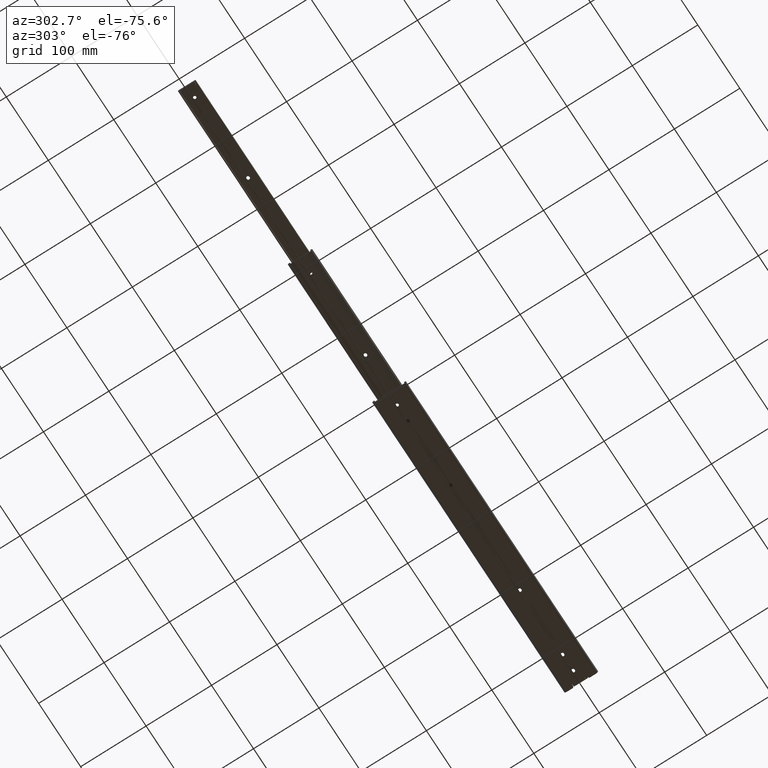
[diagram: clean part render]
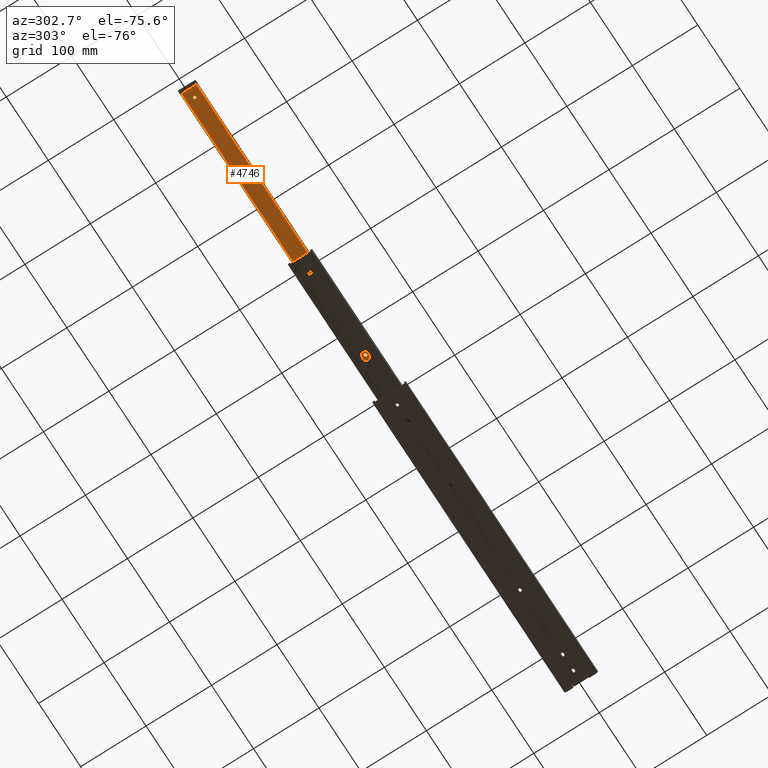
[diagram: same view with one face highlighted and labeled with its STEP entity id]
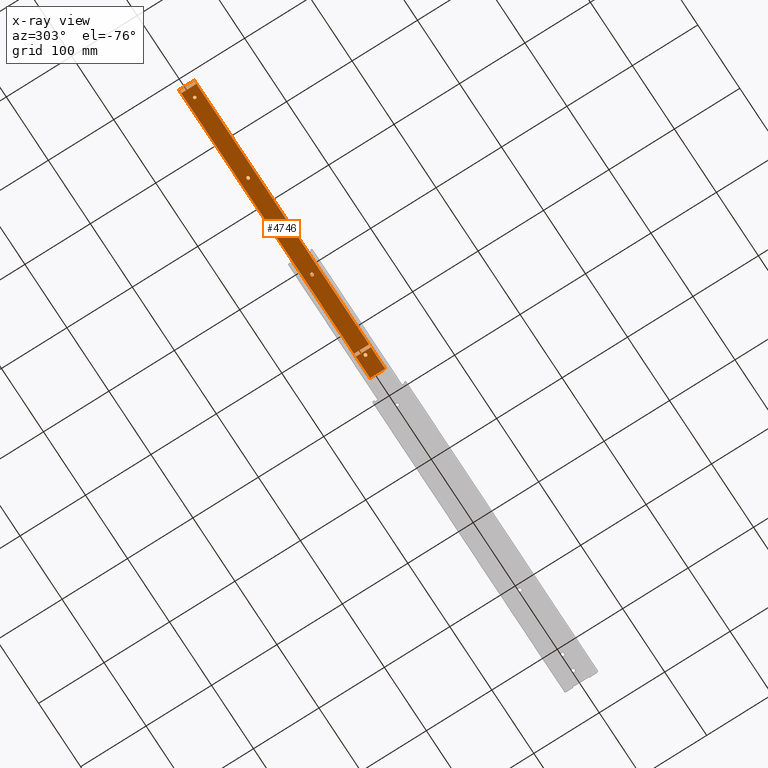
[diagram: x-ray of the same camera — body ghosted, the highlighted face saturated]
A machine part, auxiliary view. The second image highlights one B-rep face of the part: STEP entity #4746.
The next image is the same camera in x-ray: the body ghosted, the highlighted face saturated — about 0% of this face is hidden behind the body in this view.
In plain terms, the highlighted planar face has unit normal (0, -0, -1).
Its self-contained STEP definition (entity closure, byte-faithful):
#8 = ORIENTED_EDGE ( 'NONE', *, *, #2989, .F. ) ;
#15 = ORIENTED_EDGE ( 'NONE', *, *, #741, .F. ) ;
#29 = CIRCLE ( 'NONE', #2054, 2.250000000000000000 ) ;
#32 = ORIENTED_EDGE ( 'NONE', *, *, #6806, .F. ) ;
#67 = VECTOR ( 'NONE', #7058, 1000.000000000000000 ) ;
#123 = VERTEX_POINT ( 'NONE', #183 ) ;
#146 = DIRECTION ( 'NONE',  ( 0.0000000000000000000, -1.313188302234630400E-016, -1.000000000000000000 ) ) ;
#169 = VECTOR ( 'NONE', #6057, 1000.000000000000000 ) ;
#183 = CARTESIAN_POINT ( 'NONE',  ( 454.3999999999999800, 11.55876151879170900, -1.599999999999960800 ) ) ;
#187 = ORIENTED_EDGE ( 'NONE', *, *, #7495, .F. ) ;
#191 = CIRCLE ( 'NONE', #2157, 2.250000000000000000 ) ;
#222 = DIRECTION ( 'NONE',  ( 0.0000000000000000000, -1.313188302234630400E-016, -1.000000000000000000 ) ) ;
#243 = CARTESIAN_POINT ( 'NONE',  ( 454.3999999999999800, 11.55876151879170900, -1.599999999999960800 ) ) ;
#288 = EDGE_LOOP ( 'NONE', ( #5741, #187 ) ) ;
#298 = DIRECTION ( 'NONE',  ( 0.0000000000000000000, 1.000000000000000000, -9.637352644315585400E-017 ) ) ;
#354 = CARTESIAN_POINT ( 'NONE',  ( 301.1499999999999800, 7.038289768340773800E-013, -1.599999999999959500 ) ) ;
#419 = ORIENTED_EDGE ( 'NONE', *, *, #4133, .F. ) ;
#467 = CIRCLE ( 'NONE', #6349, 2.250000000000000000 ) ;
#484 = CARTESIAN_POINT ( 'NONE',  ( 454.3999999999999800, -11.55876151879170900, -1.599999999999957900 ) ) ;
#495 = ORIENTED_EDGE ( 'NONE', *, *, #4872, .F. ) ;
#527 = CARTESIAN_POINT ( 'NONE',  ( 420.5000000000000000, -11.00000000000000200, -1.599999999999957900 ) ) ;
#550 = CARTESIAN_POINT ( 'NONE',  ( 4.999999999999999100, -11.00000000000000000, -1.599999999999957900 ) ) ;
#615 = ORIENTED_EDGE ( 'NONE', *, *, #1456, .F. ) ;
#619 = ORIENTED_EDGE ( 'NONE', *, *, #850, .F. ) ;
#652 = PLANE ( 'NONE',  #6594 ) ;
#671 = VERTEX_POINT ( 'NONE', #5602 ) ;
#705 = CARTESIAN_POINT ( 'NONE',  ( 420.5000000000000000, -11.00000000000000200, -1.599999999999957900 ) ) ;
#707 = AXIS2_PLACEMENT_3D ( 'NONE', #3799, #222, #4412 ) ;
#722 = CARTESIAN_POINT ( 'NONE',  ( 146.5000000000000900, -2.250000000000000400, -1.599999999999959000 ) ) ;
#733 = VECTOR ( 'NONE', #6922, 1000.000000000000000 ) ;
#735 = LINE ( 'NONE', #5426, #917 ) ;
#741 = EDGE_CURVE ( 'NONE', #5172, #1689, #2326, .T. ) ;
#780 = VERTEX_POINT ( 'NONE', #6171 ) ;
#805 = FACE_BOUND ( 'NONE', #288, .T. ) ;
#850 = EDGE_CURVE ( 'NONE', #6939, #7079, #3334, .T. ) ;
#869 = ORIENTED_EDGE ( 'NONE', *, *, #2243, .F. ) ;
#879 = CARTESIAN_POINT ( 'NONE',  ( 425.9000000000003800, -2.249999999999296100, -1.599999999999959000 ) ) ;
#917 = VECTOR ( 'NONE', #7117, 1000.000000000000000 ) ;
#973 = LINE ( 'NONE', #527, #7210 ) ;
#987 = FACE_BOUND ( 'NONE', #4592, .T. ) ;
#1029 = AXIS2_PLACEMENT_3D ( 'NONE', #6689, #3038, #7298 ) ;
#1091 = DIRECTION ( 'NONE',  ( -1.000000000000000000, -0.0000000000000000000, -0.0000000000000000000 ) ) ;
#1138 = CARTESIAN_POINT ( 'NONE',  ( 298.1000000000000200, 2.250000000000703900, -1.599999999999959500 ) ) ;
#1164 = ORIENTED_EDGE ( 'NONE', *, *, #6151, .F. ) ;
#1198 = CARTESIAN_POINT ( 'NONE',  ( 298.8999999999999800, 7.038289768340773800E-013, -1.599999999999959500 ) ) ;
#1233 = VERTEX_POINT ( 'NONE', #879 ) ;
#1246 = EDGE_LOOP ( 'NONE', ( #4728, #7296, #1740, #4614 ) ) ;
#1259 = DIRECTION ( 'NONE',  ( 0.0000000000000000000, -1.313188302234630400E-016, -1.000000000000000000 ) ) ;
#1310 = EDGE_CURVE ( 'NONE', #6360, #4884, #6476, .T. ) ;
#1383 = DIRECTION ( 'NONE',  ( 0.0000000000000000000, 1.000000000000000000, -9.637352644315595200E-017 ) ) ;
#1430 = DIRECTION ( 'NONE',  ( 0.0000000000000000000, -1.000000000000000000, 1.313188302234630400E-016 ) ) ;
#1456 = EDGE_CURVE ( 'NONE', #7309, #2100, #735, .T. ) ;
#1467 = CARTESIAN_POINT ( 'NONE',  ( 454.3999999999999800, -2.250000000000000400, -1.599999999999959000 ) ) ;
#1469 = CARTESIAN_POINT ( 'NONE',  ( 425.8999999999999800, 2.250000000000703900, -1.599999999999959900 ) ) ;
#1491 = VECTOR ( 'NONE', #4894, 1000.000000000000000 ) ;
#1506 = EDGE_CURVE ( 'NONE', #2269, #1549, #3719, .T. ) ;
#1513 = VERTEX_POINT ( 'NONE', #4534 ) ;
#1518 = CARTESIAN_POINT ( 'NONE',  ( 428.1499999999999800, 7.038779627060433600E-013, -1.599999999999959500 ) ) ;
#1535 = VERTEX_POINT ( 'NONE', #5768 ) ;
#1549 = VERTEX_POINT ( 'NONE', #6287 ) ;
#1568 = DIRECTION ( 'NONE',  ( -1.000000000000000000, -0.0000000000000000000, -0.0000000000000000000 ) ) ;
#1684 = EDGE_CURVE ( 'NONE', #123, #6838, #2414, .T. ) ;
#1689 = VERTEX_POINT ( 'NONE', #2221 ) ;
#1740 = ORIENTED_EDGE ( 'NONE', *, *, #1310, .F. ) ;
#1757 = CARTESIAN_POINT ( 'NONE',  ( 454.3999999999999800, 11.55876151879170900, -1.599999999999960800 ) ) ;
#1796 = DIRECTION ( 'NONE',  ( 0.0000000000000000000, -1.313188302234630400E-016, -1.000000000000000000 ) ) ;
#1806 = EDGE_LOOP ( 'NONE', ( #7205, #5579, #7470, #5349 ) ) ;
#1907 = EDGE_LOOP ( 'NONE', ( #4996, #2178, #1926, #6049, #2461 ) ) ;
#1912 = CARTESIAN_POINT ( 'NONE',  ( 0.5000000000000022200, 11.00000000000000000, -1.599999999999960800 ) ) ;
#1915 = CIRCLE ( 'NONE', #707, 2.250000000000000000 ) ;
#1926 = ORIENTED_EDGE ( 'NONE', *, *, #4271, .F. ) ;
#1941 = AXIS2_PLACEMENT_3D ( 'NONE', #3816, #146, #6469 ) ;
#1965 = DIRECTION ( 'NONE',  ( 0.0000000000000000000, -1.000000000000000000, 1.313188302234630400E-016 ) ) ;
#1970 = CARTESIAN_POINT ( 'NONE',  ( 454.3999999999999800, -2.249999999999296100, -1.599999999999959000 ) ) ;
#1976 = EDGE_CURVE ( 'NONE', #1549, #1535, #3329, .T. ) ;
#2054 = AXIS2_PLACEMENT_3D ( 'NONE', #5982, #2378, #6597 ) ;
#2072 = VERTEX_POINT ( 'NONE', #6414 ) ;
#2100 = VERTEX_POINT ( 'NONE', #1469 ) ;
#2134 = VECTOR ( 'NONE', #5345, 1000.000000000000000 ) ;
#2157 = AXIS2_PLACEMENT_3D ( 'NONE', #5385, #1796, #5999 ) ;
#2178 = ORIENTED_EDGE ( 'NONE', *, *, #7023, .F. ) ;
#2179 = VERTEX_POINT ( 'NONE', #3172 ) ;
#2185 = LINE ( 'NONE', #484, #5191 ) ;
#2221 = CARTESIAN_POINT ( 'NONE',  ( 5.000000000000001800, 11.00000000000000000, -1.599999999999960800 ) ) ;
#2243 = EDGE_CURVE ( 'NONE', #1689, #5370, #6273, .T. ) ;
#2269 = VERTEX_POINT ( 'NONE', #3435 ) ;
#2272 = DIRECTION ( 'NONE',  ( 0.0000000000000000000, -1.313188302234630400E-016, -1.000000000000000000 ) ) ;
#2326 = LINE ( 'NONE', #5419, #733 ) ;
#2378 = DIRECTION ( 'NONE',  ( 0.0000000000000000000, -1.313188302234630400E-016, -1.000000000000000000 ) ) ;
#2399 = FACE_BOUND ( 'NONE', #1907, .T. ) ;
#2414 = LINE ( 'NONE', #1757, #5611 ) ;
#2429 = CARTESIAN_POINT ( 'NONE',  ( 454.3999999999999800, 11.55876151879170900, -1.599999999999960800 ) ) ;
#2461 = ORIENTED_EDGE ( 'NONE', *, *, #1976, .F. ) ;
#2496 = LINE ( 'NONE', #550, #2134 ) ;
#2547 = DIRECTION ( 'NONE',  ( 0.0000000000000000000, -1.313188302234630400E-016, -1.000000000000000000 ) ) ;
#2561 = CARTESIAN_POINT ( 'NONE',  ( 146.5000000000000300, 8.757870196559371000E-015, -1.599999999999959500 ) ) ;
#2572 = CARTESIAN_POINT ( 'NONE',  ( 298.8999999999999200, -2.249999999999296100, -1.599999999999959000 ) ) ;
#2633 = ORIENTED_EDGE ( 'NONE', *, *, #3800, .F. ) ;
#2731 = VERTEX_POINT ( 'NONE', #7555 ) ;
#2764 = VECTOR ( 'NONE', #3814, 1000.000000000000000 ) ;
#2765 = CARTESIAN_POINT ( 'NONE',  ( 416.0000000000000000, -11.00000000000000000, -1.599999999999957900 ) ) ;
#2803 = CARTESIAN_POINT ( 'NONE',  ( 5.000000000000001800, 11.00000000000000000, -1.599999999999960800 ) ) ;
#2819 = VERTEX_POINT ( 'NONE', #1518 ) ;
#2940 = EDGE_CURVE ( 'NONE', #2819, #1233, #3788, .T. ) ;
#2965 = DIRECTION ( 'NONE',  ( -0.0000000000000000000, 1.000000000000000000, -1.379893674072460500E-016 ) ) ;
#2971 = VERTEX_POINT ( 'NONE', #5262 ) ;
#2989 = EDGE_CURVE ( 'NONE', #7551, #2971, #6646, .T. ) ;
#3038 = DIRECTION ( 'NONE',  ( 0.0000000000000000000, -1.313188302234630400E-016, -1.000000000000000000 ) ) ;
#3056 = VECTOR ( 'NONE', #3359, 1000.000000000000000 ) ;
#3112 = DIRECTION ( 'NONE',  ( 0.0000000000000000000, -1.313188302234630400E-016, -1.000000000000000000 ) ) ;
#3141 = EDGE_CURVE ( 'NONE', #2100, #2819, #7122, .T. ) ;
#3150 = DIRECTION ( 'NONE',  ( 0.0000000000000000000, 1.000000000000000000, -9.637352644315595200E-017 ) ) ;
#3172 = CARTESIAN_POINT ( 'NONE',  ( 0.4999999999999997800, -11.00000000000000000, -1.599999999999957900 ) ) ;
#3214 = VECTOR ( 'NONE', #7781, 1000.000000000000000 ) ;
#3217 = VERTEX_POINT ( 'NONE', #705 ) ;
#3226 = VECTOR ( 'NONE', #6310, 1000.000000000000000 ) ;
#3255 = VECTOR ( 'NONE', #6897, 1000.000000000000000 ) ;
#3329 = LINE ( 'NONE', #5545, #169 ) ;
#3334 = CIRCLE ( 'NONE', #5597, 2.250000000000000000 ) ;
#3339 = CARTESIAN_POINT ( 'NONE',  ( 298.8999999999999800, 7.038289768340773800E-013, -1.599999999999959500 ) ) ;
#3359 = DIRECTION ( 'NONE',  ( 1.000000000000000000, -0.0000000000000000000, -0.0000000000000000000 ) ) ;
#3435 = CARTESIAN_POINT ( 'NONE',  ( 145.6999999999999900, -2.250000000000000000, -1.599999999999959000 ) ) ;
#3514 = CARTESIAN_POINT ( 'NONE',  ( 454.3999999999999800, -2.249999999999296100, -1.599999999999959000 ) ) ;
#3574 = CARTESIAN_POINT ( 'NONE',  ( 416.0000000000000000, 11.00000000000000000, -1.599999999999960800 ) ) ;
#3634 = AXIS2_PLACEMENT_3D ( 'NONE', #2561, #6801, #3150 ) ;
#3719 = CIRCLE ( 'NONE', #1941, 2.250000000000000000 ) ;
#3720 = CARTESIAN_POINT ( 'NONE',  ( 16.85000000000000100, 2.755455298081548200E-016, -1.599999999999959000 ) ) ;
#3721 = CARTESIAN_POINT ( 'NONE',  ( 0.0000000000000000000, 11.55876151879170900, -1.599999999999960800 ) ) ;
#3788 = CIRCLE ( 'NONE', #3974, 2.250000000000000000 ) ;
#3792 = FACE_BOUND ( 'NONE', #1246, .T. ) ;
#3799 = CARTESIAN_POINT ( 'NONE',  ( 146.5000000000000300, 8.757870196559371000E-015, -1.599999999999959500 ) ) ;
#3800 = EDGE_CURVE ( 'NONE', #5268, #6939, #4383, .T. ) ;
#3814 = DIRECTION ( 'NONE',  ( 1.000000000000000000, 0.0000000000000000000, 0.0000000000000000000 ) ) ;
#3816 = CARTESIAN_POINT ( 'NONE',  ( 145.6999999999999900, -1.128087758495556000E-014, -1.599999999999959000 ) ) ;
#3874 = DIRECTION ( 'NONE',  ( 0.0000000000000000000, -1.313188302234630400E-016, -1.000000000000000000 ) ) ;
#3947 = DIRECTION ( 'NONE',  ( 0.0000000000000000000, 1.000000000000000000, -9.637352644315595200E-017 ) ) ;
#3974 = AXIS2_PLACEMENT_3D ( 'NONE', #5876, #2272, #6489 ) ;
#4095 = VECTOR ( 'NONE', #1430, 1000.000000000000000 ) ;
#4133 = EDGE_CURVE ( 'NONE', #5370, #2179, #2496, .T. ) ;
#4271 = EDGE_CURVE ( 'NONE', #671, #6323, #5987, .T. ) ;
#4281 = ORIENTED_EDGE ( 'NONE', *, *, #7472, .F. ) ;
#4383 = LINE ( 'NONE', #6229, #2764 ) ;
#4405 = AXIS2_PLACEMENT_3D ( 'NONE', #7532, #3874, #298 ) ;
#4410 = EDGE_CURVE ( 'NONE', #4884, #3217, #4849, .T. ) ;
#4412 = DIRECTION ( 'NONE',  ( 0.0000000000000000000, 1.000000000000000000, -9.637352644315595200E-017 ) ) ;
#4478 = CARTESIAN_POINT ( 'NONE',  ( 420.5000000000000000, 11.00000000000000000, -1.599999999999960800 ) ) ;
#4482 = CIRCLE ( 'NONE', #5080, 2.250000000000002200 ) ;
#4534 = CARTESIAN_POINT ( 'NONE',  ( 21.35000000000000500, 0.0000000000000000000, -1.599999999999959000 ) ) ;
#4592 = EDGE_LOOP ( 'NONE', ( #32, #495, #7765, #6789, #615 ) ) ;
#4614 = ORIENTED_EDGE ( 'NONE', *, *, #5584, .F. ) ;
#4728 = ORIENTED_EDGE ( 'NONE', *, *, #5521, .F. ) ;
#4746 = ADVANCED_FACE ( 'NONE', ( #987, #5595, #2399, #805, #7033, #5404, #3792 ), #652, .T. ) ;
#4849 = LINE ( 'NONE', #4478, #3226 ) ;
#4872 = EDGE_CURVE ( 'NONE', #1233, #2731, #7512, .T. ) ;
#4882 = LINE ( 'NONE', #1467, #3255 ) ;
#4884 = VERTEX_POINT ( 'NONE', #6794 ) ;
#4894 = DIRECTION ( 'NONE',  ( 1.084202172485504600E-016, 1.000000000000000000, -1.379893674072460500E-016 ) ) ;
#4912 = VECTOR ( 'NONE', #1965, 1000.000000000000000 ) ;
#4996 = ORIENTED_EDGE ( 'NONE', *, *, #1506, .F. ) ;
#5008 = EDGE_CURVE ( 'NONE', #1513, #7521, #5117, .T. ) ;
#5080 = AXIS2_PLACEMENT_3D ( 'NONE', #6766, #3112, #7367 ) ;
#5089 = CARTESIAN_POINT ( 'NONE',  ( 420.5000000000000000, 11.00000000000000000, -1.599999999999960800 ) ) ;
#5117 = CIRCLE ( 'NONE', #4405, 2.250000000000002200 ) ;
#5172 = VERTEX_POINT ( 'NONE', #6456 ) ;
#5191 = VECTOR ( 'NONE', #1091, 1000.000000000000000 ) ;
#5200 = LINE ( 'NONE', #3574, #6833 ) ;
#5262 = CARTESIAN_POINT ( 'NONE',  ( 298.1000000000000200, -2.249999999999296100, -1.599999999999959000 ) ) ;
#5268 = VERTEX_POINT ( 'NONE', #1138 ) ;
#5280 = EDGE_LOOP ( 'NONE', ( #1164, #8, #5719, #619, #2633 ) ) ;
#5323 = DIRECTION ( 'NONE',  ( -1.000000000000000000, 3.854941057726234200E-016, 0.0000000000000000000 ) ) ;
#5345 = DIRECTION ( 'NONE',  ( -1.000000000000000000, 0.0000000000000000000, 0.0000000000000000000 ) ) ;
#5349 = ORIENTED_EDGE ( 'NONE', *, *, #6079, .T. ) ;
#5370 = VERTEX_POINT ( 'NONE', #6054 ) ;
#5385 = CARTESIAN_POINT ( 'NONE',  ( 425.0999999999999700, 7.037310050901456100E-013, -1.599999999999959500 ) ) ;
#5404 = FACE_BOUND ( 'NONE', #5638, .T. ) ;
#5419 = CARTESIAN_POINT ( 'NONE',  ( 5.000000000000001800, 11.00000000000000000, -1.599999999999960800 ) ) ;
#5426 = CARTESIAN_POINT ( 'NONE',  ( 454.3999999999999800, 2.250000000000703000, -1.599999999999959500 ) ) ;
#5451 = DIRECTION ( 'NONE',  ( 0.0000000000000000000, 1.000000000000000000, -1.313188302234630400E-016 ) ) ;
#5521 = EDGE_CURVE ( 'NONE', #3217, #6593, #973, .T. ) ;
#5524 = LINE ( 'NONE', #243, #4095 ) ;
#5545 = CARTESIAN_POINT ( 'NONE',  ( 454.3999999999999800, 2.250000000000000400, -1.599999999999959500 ) ) ;
#5548 = CARTESIAN_POINT ( 'NONE',  ( 416.0000000000000600, 11.00000000000000000, -1.599999999999960800 ) ) ;
#5579 = ORIENTED_EDGE ( 'NONE', *, *, #1684, .F. ) ;
#5584 = EDGE_CURVE ( 'NONE', #6593, #6360, #5200, .T. ) ;
#5595 = FACE_BOUND ( 'NONE', #5280, .T. ) ;
#5597 = AXIS2_PLACEMENT_3D ( 'NONE', #1198, #2547, #1383 ) ;
#5602 = CARTESIAN_POINT ( 'NONE',  ( 148.7500000000000300, 8.757870196559371000E-015, -1.599999999999959500 ) ) ;
#5611 = VECTOR ( 'NONE', #1568, 1000.000000000000000 ) ;
#5638 = EDGE_LOOP ( 'NONE', ( #419, #869, #15, #4281 ) ) ;
#5719 = ORIENTED_EDGE ( 'NONE', *, *, #6555, .F. ) ;
#5741 = ORIENTED_EDGE ( 'NONE', *, *, #5008, .F. ) ;
#5768 = CARTESIAN_POINT ( 'NONE',  ( 146.5000000000000300, 2.250000000000000000, -1.599999999999959900 ) ) ;
#5876 = CARTESIAN_POINT ( 'NONE',  ( 425.8999999999999800, 7.038779627060433600E-013, -1.599999999999959500 ) ) ;
#5982 = CARTESIAN_POINT ( 'NONE',  ( 298.1000000000000200, 7.036820192181797200E-013, -1.599999999999959500 ) ) ;
#5987 = CIRCLE ( 'NONE', #3634, 2.250000000000000000 ) ;
#5999 = DIRECTION ( 'NONE',  ( 0.0000000000000000000, 1.000000000000000000, -9.637352644315595200E-017 ) ) ;
#6049 = ORIENTED_EDGE ( 'NONE', *, *, #6404, .F. ) ;
#6054 = CARTESIAN_POINT ( 'NONE',  ( 4.999999999999999100, -11.00000000000000000, -1.599999999999957900 ) ) ;
#6057 = DIRECTION ( 'NONE',  ( 1.000000000000000000, 0.0000000000000000000, 0.0000000000000000000 ) ) ;
#6073 = VECTOR ( 'NONE', #6175, 1000.000000000000000 ) ;
#6079 = EDGE_CURVE ( 'NONE', #780, #2072, #2185, .T. ) ;
#6151 = EDGE_CURVE ( 'NONE', #2971, #5268, #29, .T. ) ;
#6171 = CARTESIAN_POINT ( 'NONE',  ( 454.3999999999999800, -11.55876151879170900, -1.599999999999957900 ) ) ;
#6175 = DIRECTION ( 'NONE',  ( -1.000000000000000000, 0.0000000000000000000, 0.0000000000000000000 ) ) ;
#6229 = CARTESIAN_POINT ( 'NONE',  ( 454.3999999999999800, 2.250000000000703000, -1.599999999999959500 ) ) ;
#6273 = LINE ( 'NONE', #2803, #67 ) ;
#6287 = CARTESIAN_POINT ( 'NONE',  ( 145.6999999999999900, 2.250000000000000000, -1.599999999999959500 ) ) ;
#6291 = LINE ( 'NONE', #1912, #1491 ) ;
#6310 = DIRECTION ( 'NONE',  ( 0.0000000000000000000, -1.000000000000000000, 1.379893674072460500E-016 ) ) ;
#6323 = VERTEX_POINT ( 'NONE', #722 ) ;
#6349 = AXIS2_PLACEMENT_3D ( 'NONE', #3339, #7604, #3947 ) ;
#6360 = VERTEX_POINT ( 'NONE', #5548 ) ;
#6363 = EDGE_CURVE ( 'NONE', #6838, #2072, #6527, .T. ) ;
#6404 = EDGE_CURVE ( 'NONE', #1535, #671, #1915, .T. ) ;
#6414 = CARTESIAN_POINT ( 'NONE',  ( 0.0000000000000000000, -11.55876151879170900, -1.599999999999957900 ) ) ;
#6456 = CARTESIAN_POINT ( 'NONE',  ( 0.5000000000000004400, 11.00000000000000000, -1.599999999999960800 ) ) ;
#6469 = DIRECTION ( 'NONE',  ( 0.0000000000000000000, 1.000000000000000000, -9.637352644315595200E-017 ) ) ;
#6476 = LINE ( 'NONE', #5089, #3056 ) ;
#6489 = DIRECTION ( 'NONE',  ( 0.0000000000000000000, 1.000000000000000000, -9.637352644315595200E-017 ) ) ;
#6527 = LINE ( 'NONE', #3721, #4912 ) ;
#6555 = EDGE_CURVE ( 'NONE', #7079, #7551, #467, .T. ) ;
#6572 = CARTESIAN_POINT ( 'NONE',  ( 425.0999999999999700, 2.250000000000703900, -1.599999999999959500 ) ) ;
#6593 = VERTEX_POINT ( 'NONE', #2765 ) ;
#6594 = AXIS2_PLACEMENT_3D ( 'NONE', #2429, #1259, #5451 ) ;
#6597 = DIRECTION ( 'NONE',  ( 0.0000000000000000000, 1.000000000000000000, -9.637352644315595200E-017 ) ) ;
#6645 = CARTESIAN_POINT ( 'NONE',  ( 0.0000000000000000000, 11.55876151879170900, -1.599999999999960800 ) ) ;
#6646 = LINE ( 'NONE', #3514, #3214 ) ;
#6689 = CARTESIAN_POINT ( 'NONE',  ( 425.8999999999999800, 7.038779627060433600E-013, -1.599999999999959500 ) ) ;
#6766 = CARTESIAN_POINT ( 'NONE',  ( 19.10000000000000100, 0.0000000000000000000, -1.599999999999959000 ) ) ;
#6779 = CARTESIAN_POINT ( 'NONE',  ( 298.8999999999999200, 2.250000000000703900, -1.599999999999959900 ) ) ;
#6789 = ORIENTED_EDGE ( 'NONE', *, *, #3141, .F. ) ;
#6794 = CARTESIAN_POINT ( 'NONE',  ( 420.5000000000000000, 11.00000000000000000, -1.599999999999960800 ) ) ;
#6801 = DIRECTION ( 'NONE',  ( 0.0000000000000000000, -1.313188302234630400E-016, -1.000000000000000000 ) ) ;
#6806 = EDGE_CURVE ( 'NONE', #2731, #7309, #191, .T. ) ;
#6833 = VECTOR ( 'NONE', #2965, 1000.000000000000000 ) ;
#6838 = VERTEX_POINT ( 'NONE', #6645 ) ;
#6897 = DIRECTION ( 'NONE',  ( -1.000000000000000000, 0.0000000000000000000, 0.0000000000000000000 ) ) ;
#6922 = DIRECTION ( 'NONE',  ( 1.000000000000000000, -0.0000000000000000000, -0.0000000000000000000 ) ) ;
#6939 = VERTEX_POINT ( 'NONE', #6779 ) ;
#7023 = EDGE_CURVE ( 'NONE', #6323, #2269, #4882, .T. ) ;
#7033 = FACE_OUTER_BOUND ( 'NONE', #1806, .T. ) ;
#7058 = DIRECTION ( 'NONE',  ( -1.182766006347823100E-016, -1.000000000000000000, 1.379893674072460500E-016 ) ) ;
#7079 = VERTEX_POINT ( 'NONE', #354 ) ;
#7117 = DIRECTION ( 'NONE',  ( 1.000000000000000000, 0.0000000000000000000, 0.0000000000000000000 ) ) ;
#7122 = CIRCLE ( 'NONE', #1029, 2.250000000000000000 ) ;
#7205 = ORIENTED_EDGE ( 'NONE', *, *, #6363, .F. ) ;
#7210 = VECTOR ( 'NONE', #5323, 1000.000000000000000 ) ;
#7296 = ORIENTED_EDGE ( 'NONE', *, *, #4410, .F. ) ;
#7298 = DIRECTION ( 'NONE',  ( 0.0000000000000000000, 1.000000000000000000, -9.637352644315595200E-017 ) ) ;
#7309 = VERTEX_POINT ( 'NONE', #6572 ) ;
#7367 = DIRECTION ( 'NONE',  ( 0.0000000000000000000, 1.000000000000000000, -9.637352644315585400E-017 ) ) ;
#7470 = ORIENTED_EDGE ( 'NONE', *, *, #7607, .T. ) ;
#7472 = EDGE_CURVE ( 'NONE', #2179, #5172, #6291, .T. ) ;
#7495 = EDGE_CURVE ( 'NONE', #7521, #1513, #4482, .T. ) ;
#7512 = LINE ( 'NONE', #1970, #6073 ) ;
#7521 = VERTEX_POINT ( 'NONE', #3720 ) ;
#7532 = CARTESIAN_POINT ( 'NONE',  ( 19.10000000000000100, 0.0000000000000000000, -1.599999999999959000 ) ) ;
#7551 = VERTEX_POINT ( 'NONE', #2572 ) ;
#7555 = CARTESIAN_POINT ( 'NONE',  ( 425.0999999999995100, -2.249999999999296100, -1.599999999999959000 ) ) ;
#7604 = DIRECTION ( 'NONE',  ( 0.0000000000000000000, -1.313188302234630400E-016, -1.000000000000000000 ) ) ;
#7607 = EDGE_CURVE ( 'NONE', #123, #780, #5524, .T. ) ;
#7765 = ORIENTED_EDGE ( 'NONE', *, *, #2940, .F. ) ;
#7781 = DIRECTION ( 'NONE',  ( -1.000000000000000000, 0.0000000000000000000, 0.0000000000000000000 ) ) ;